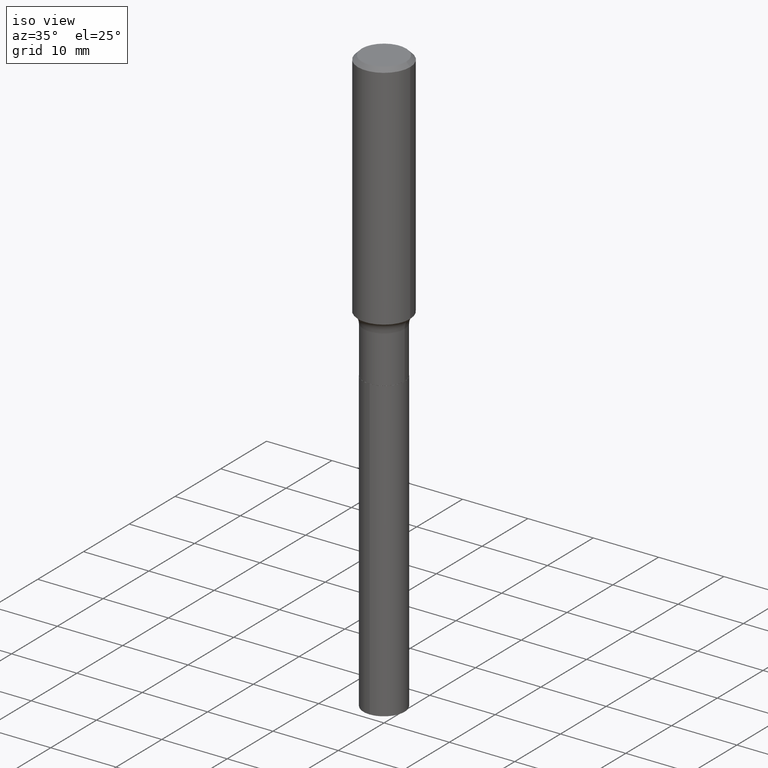
[diagram: clean part render]
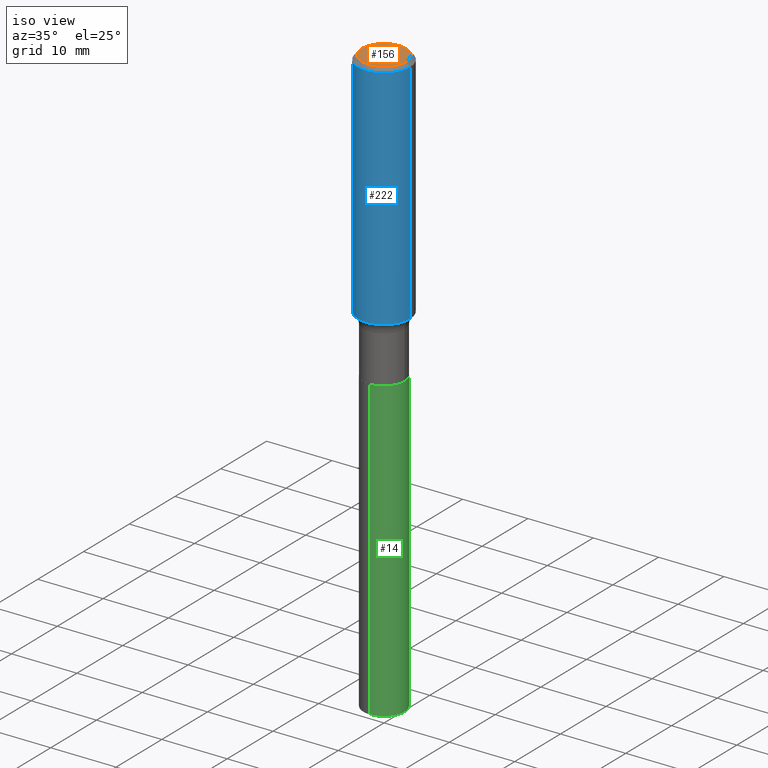
[diagram: same view with three faces highlighted in distinct colors, each labeled with its STEP entity id]
A machine part, iso view with three faces highlighted in distinct colors.
Their STEP definitions:

[orange] entity #156 — the highlighted planar face has unit normal (0, -0, -1).
#18 = EDGE_LOOP ( 'NONE', ( #191, #434 ) ) ;
#22 = CIRCLE ( 'NONE', #84, 0.1338749999999999940 ) ;
#37 = AXIS2_PLACEMENT_3D ( 'NONE', #215, #339, #373 ) ;
#84 = AXIS2_PLACEMENT_3D ( 'NONE', #463, #113, #431 ) ;
#86 = AXIS2_PLACEMENT_3D ( 'NONE', #199, #331, #478 ) ;
#106 = CIRCLE ( 'NONE', #37, 0.1338749999999999940 ) ;
#113 = DIRECTION ( 'NONE',  ( -2.445468806185136597E-29, 3.491481338843145583E-15, 1.000000000000000000 ) ) ;
#142 = CARTESIAN_POINT ( 'NONE',  ( 0.1338749999999999940, -1.040731925365424925E-15, 4.101342130351393887E-18 ) ) ;
#156 = ADVANCED_FACE ( 'NONE', ( #492 ), #262, .F. ) ;
#168 = EDGE_CURVE ( 'NONE', #246, #183, #106, .T. ) ;
#173 = CARTESIAN_POINT ( 'NONE',  ( -0.1338749999999999940, 9.760872517903331886E-16, 4.101342130337804525E-18 ) ) ;
#183 = VERTEX_POINT ( 'NONE', #173 ) ;
#191 = ORIENTED_EDGE ( 'NONE', *, *, #325, .T. ) ;
#199 = CARTESIAN_POINT ( 'NONE',  ( -5.014852121625167883E-47, 7.159879756154482429E-33, 2.050671065172242981E-18 ) ) ;
#215 = CARTESIAN_POINT ( 'NONE',  ( -1.002970424325033577E-46, 1.431975951230896486E-32, 4.101342130344485961E-18 ) ) ;
#246 = VERTEX_POINT ( 'NONE', #142 ) ;
#262 = PLANE ( 'NONE',  #86 ) ;
#325 = EDGE_CURVE ( 'NONE', #183, #246, #22, .T. ) ;
#331 = DIRECTION ( 'NONE',  ( 2.438088387897960049E-29, -3.491481338843145188E-15, -1.000000000000000000 ) ) ;
#339 = DIRECTION ( 'NONE',  ( -2.445468806185136597E-29, 3.491481338843145583E-15, 1.000000000000000000 ) ) ;
#373 = DIRECTION ( 'NONE',  ( 1.000000000000000000, -6.982962677686266711E-15, 4.876170806578254279E-29 ) ) ;
#431 = DIRECTION ( 'NONE',  ( 1.000000000000000000, -6.982962677686266711E-15, 4.876170806578254279E-29 ) ) ;
#434 = ORIENTED_EDGE ( 'NONE', *, *, #168, .T. ) ;
#463 = CARTESIAN_POINT ( 'NONE',  ( -1.002970424325033577E-46, 1.431975951230896486E-32, 4.101342130344485961E-18 ) ) ;
#478 = DIRECTION ( 'NONE',  ( -1.000000000000000000, 6.982962677686265922E-15, -4.876176775795935793E-29 ) ) ;
#492 = FACE_OUTER_BOUND ( 'NONE', #18, .T. ) ;

[blue] entity #222 — the highlighted cylindrical surface (edge-blend (fillet) strip) has radius 4.0005 mm, axis along (-0, 0, 1).
#9 = VERTEX_POINT ( 'NONE', #329 ) ;
#31 = CARTESIAN_POINT ( 'NONE',  ( 0.1575000000000001676, -5.969872642905350686E-15, -1.394839481737968789 ) ) ;
#36 = DIRECTION ( 'NONE',  ( -2.445468806185136877E-29, 3.491481338843145188E-15, 1.000000000000000000 ) ) ;
#60 = VECTOR ( 'NONE', #36, 39.37007874015748143 ) ;
#69 = CARTESIAN_POINT ( 'NONE',  ( 0.1575000000000000844, -1.099816621735587677E-15, 7.679978421878603638E-30 ) ) ;
#77 = ORIENTED_EDGE ( 'NONE', *, *, #474, .F. ) ;
#79 = VERTEX_POINT ( 'NONE', #365 ) ;
#80 = ORIENTED_EDGE ( 'NONE', *, *, #344, .F. ) ;
#87 = VECTOR ( 'NONE', #410, 39.37007874015748143 ) ;
#91 = CYLINDRICAL_SURFACE ( 'NONE', #147, 0.1575000000000000844 ) ;
#93 = DIRECTION ( 'NONE',  ( -2.445468806185136597E-29, 3.491481338843145583E-15, 1.000000000000000000 ) ) ;
#109 = EDGE_LOOP ( 'NONE', ( #80, #251, #112, #77 ) ) ;
#111 = EDGE_CURVE ( 'NONE', #162, #9, #229, .T. ) ;
#112 = ORIENTED_EDGE ( 'NONE', *, *, #111, .T. ) ;
#129 = FACE_OUTER_BOUND ( 'NONE', #109, .T. ) ;
#147 = AXIS2_PLACEMENT_3D ( 'NONE', #248, #93, #226 ) ;
#162 = VERTEX_POINT ( 'NONE', #31 ) ;
#220 = DIRECTION ( 'NONE',  ( 1.000000000000000000, -6.982962677686267499E-15, 0.000000000000000000 ) ) ;
#222 = ADVANCED_FACE ( 'NONE', ( #129 ), #91, .T. ) ;
#226 = DIRECTION ( 'NONE',  ( 1.000000000000000000, -6.982962677686267499E-15, 4.876176775795936353E-29 ) ) ;
#229 = LINE ( 'NONE', #69, #60 ) ;
#240 = CIRCLE ( 'NONE', #450, 0.1575000000000000011 ) ;
#248 = CARTESIAN_POINT ( 'NONE',  ( 0.000000000000000000, 0.000000000000000000, 0.000000000000000000 ) ) ;
#251 = ORIENTED_EDGE ( 'NONE', *, *, #263, .T. ) ;
#257 = DIRECTION ( 'NONE',  ( 1.000000000000000000, -6.982962677686265922E-15, 0.000000000000000000 ) ) ;
#263 = EDGE_CURVE ( 'NONE', #79, #162, #455, .T. ) ;
#314 = VERTEX_POINT ( 'NONE', #438 ) ;
#328 = LINE ( 'NONE', #488, #87 ) ;
#329 = CARTESIAN_POINT ( 'NONE',  ( 0.1575000000000000011, -1.182302868365756679E-15, -0.02362500000000015282 ) ) ;
#344 = EDGE_CURVE ( 'NONE', #79, #314, #328, .T. ) ;
#365 = CARTESIAN_POINT ( 'NONE',  ( -0.1575000000000001676, -3.750951212347604024E-15, -1.394839481737968789 ) ) ;
#366 = DIRECTION ( 'NONE',  ( -2.445468806185136597E-29, 3.491481338843145583E-15, 1.000000000000000000 ) ) ;
#384 = CARTESIAN_POINT ( 'NONE',  ( 3.411036442225645245E-29, -4.870056021169762416E-15, -1.394839481737968789 ) ) ;
#410 = DIRECTION ( 'NONE',  ( -2.445468806185136877E-29, 3.491481338843145188E-15, 1.000000000000000000 ) ) ;
#411 = CARTESIAN_POINT ( 'NONE',  ( 5.777420054612421980E-31, -8.248624663016985234E-17, -0.02362500000000015282 ) ) ;
#416 = DIRECTION ( 'NONE',  ( -2.445468806185136597E-29, 3.491481338843145583E-15, 1.000000000000000000 ) ) ;
#438 = CARTESIAN_POINT ( 'NONE',  ( -0.1575000000000000011, -1.357166325077807514E-15, -0.02362500000000015282 ) ) ;
#450 = AXIS2_PLACEMENT_3D ( 'NONE', #411, #366, #257 ) ;
#455 = CIRCLE ( 'NONE', #476, 0.1575000000000001676 ) ;
#474 = EDGE_CURVE ( 'NONE', #314, #9, #240, .T. ) ;
#476 = AXIS2_PLACEMENT_3D ( 'NONE', #384, #416, #220 ) ;
#488 = CARTESIAN_POINT ( 'NONE',  ( -0.1575000000000000844, 1.119104808822158392E-15, -7.747322767151481189E-30 ) ) ;

[green] entity #14 — the highlighted cylindrical surface (edge-blend (fillet) strip) has radius 3.1496 mm, axis along (-0, 0, 1).
#12 = CIRCLE ( 'NONE', #465, 0.1239999999999999991 ) ;
#14 = ADVANCED_FACE ( 'NONE', ( #102 ), #214, .T. ) ;
#29 = DIRECTION ( 'NONE',  ( -2.445500008357157886E-29, 3.491436655556893596E-15, 1.000000000000000000 ) ) ;
#41 = VERTEX_POINT ( 'NONE', #92 ) ;
#57 = DIRECTION ( 'NONE',  ( -2.445500008357157886E-29, 3.491436655556893596E-15, 1.000000000000000000 ) ) ;
#64 = CARTESIAN_POINT ( 'NONE',  ( 8.665826624568987053E-29, -1.237234316511408232E-14, -3.543602950179006061 ) ) ;
#66 = DIRECTION ( 'NONE',  ( -2.445500008357157886E-29, 3.491436655556893596E-15, 1.000000000000000000 ) ) ;
#85 = DIRECTION ( 'NONE',  ( -6.982962677686265922E-15, -1.000000000000000000, 4.406206441393973340E-15 ) ) ;
#92 = CARTESIAN_POINT ( 'NONE',  ( -8.658873720330101554E-16, -0.1240000000000123503, -3.543602950179005617 ) ) ;
#96 = CARTESIAN_POINT ( 'NONE',  ( -8.658873720330542330E-16, -0.1240000000000060915, -1.744099999999999540 ) ) ;
#102 = FACE_OUTER_BOUND ( 'NONE', #354, .T. ) ;
#125 = CARTESIAN_POINT ( 'NONE',  ( 4.265142144867497014E-29, -6.089492603076330929E-15, -1.744100000000000206 ) ) ;
#128 = DIRECTION ( 'NONE',  ( -6.982962677686265922E-15, -1.000000000000000000, 4.406206441393973340E-15 ) ) ;
#138 = CARTESIAN_POINT ( 'NONE',  ( 4.265142144867497014E-29, -6.089492603076330929E-15, -1.744100000000000206 ) ) ;
#185 = AXIS2_PLACEMENT_3D ( 'NONE', #138, #57, #128 ) ;
#186 = EDGE_CURVE ( 'NONE', #41, #276, #364, .T. ) ;
#190 = VERTEX_POINT ( 'NONE', #402 ) ;
#214 = CYLINDRICAL_SURFACE ( 'NONE', #185, 0.1239999999999999991 ) ;
#249 = AXIS2_PLACEMENT_3D ( 'NONE', #125, #359, #85 ) ;
#270 = ORIENTED_EDGE ( 'NONE', *, *, #298, .F. ) ;
#273 = CIRCLE ( 'NONE', #249, 0.1239999999999999991 ) ;
#276 = VERTEX_POINT ( 'NONE', #305 ) ;
#286 = ORIENTED_EDGE ( 'NONE', *, *, #186, .F. ) ;
#290 = CARTESIAN_POINT ( 'NONE',  ( 8.810729923425668227E-16, 0.1239999999999939068, -1.744100000000000650 ) ) ;
#298 = EDGE_CURVE ( 'NONE', #276, #313, #273, .T. ) ;
#305 = CARTESIAN_POINT ( 'NONE',  ( -8.658873720330542330E-16, -0.1240000000000060915, -1.744099999999999540 ) ) ;
#313 = VERTEX_POINT ( 'NONE', #318 ) ;
#318 = CARTESIAN_POINT ( 'NONE',  ( 8.810729923426110975E-16, 0.1239999999999939068, -1.744100000000000650 ) ) ;
#322 = VECTOR ( 'NONE', #447, 39.37007874015748143 ) ;
#324 = VECTOR ( 'NONE', #66, 39.37007874015748143 ) ;
#326 = ORIENTED_EDGE ( 'NONE', *, *, #392, .T. ) ;
#351 = ORIENTED_EDGE ( 'NONE', *, *, #407, .T. ) ;
#354 = EDGE_LOOP ( 'NONE', ( #351, #326, #270, #286 ) ) ;
#359 = DIRECTION ( 'NONE',  ( -2.445500008357157886E-29, 3.491436655556893596E-15, 1.000000000000000000 ) ) ;
#364 = LINE ( 'NONE', #96, #322 ) ;
#379 = LINE ( 'NONE', #290, #324 ) ;
#392 = EDGE_CURVE ( 'NONE', #190, #313, #379, .T. ) ;
#402 = CARTESIAN_POINT ( 'NONE',  ( 8.810729923426106044E-16, 0.1239999999999875785, -3.543602950179006950 ) ) ;
#407 = EDGE_CURVE ( 'NONE', #41, #190, #12, .T. ) ;
#447 = DIRECTION ( 'NONE',  ( -2.445500008357157886E-29, 3.491436655556893596E-15, 1.000000000000000000 ) ) ;
#457 = DIRECTION ( 'NONE',  ( -6.982962677686265922E-15, -1.000000000000000000, 4.406206441393973340E-15 ) ) ;
#465 = AXIS2_PLACEMENT_3D ( 'NONE', #64, #29, #457 ) ;